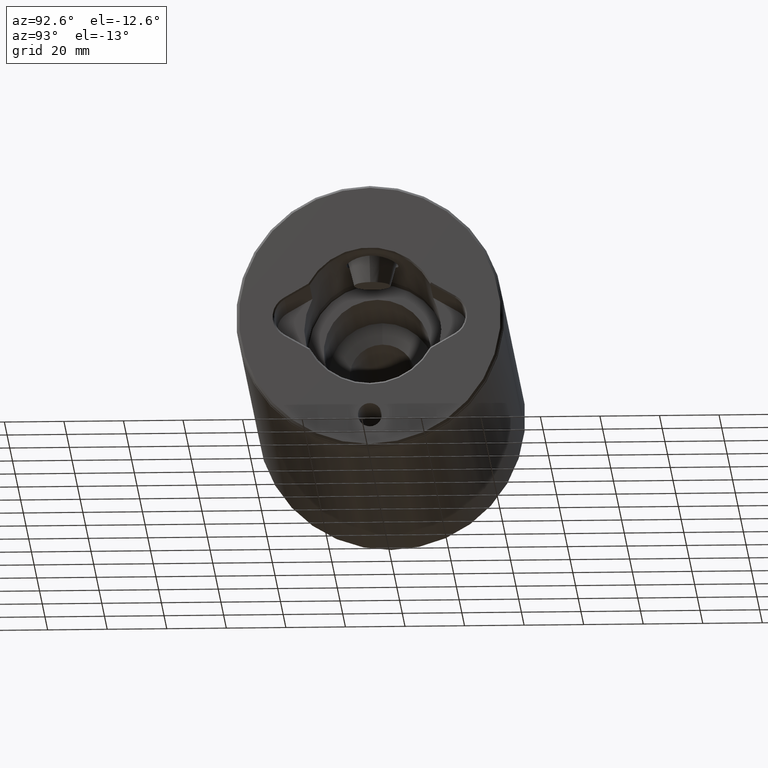
[diagram: clean part render]
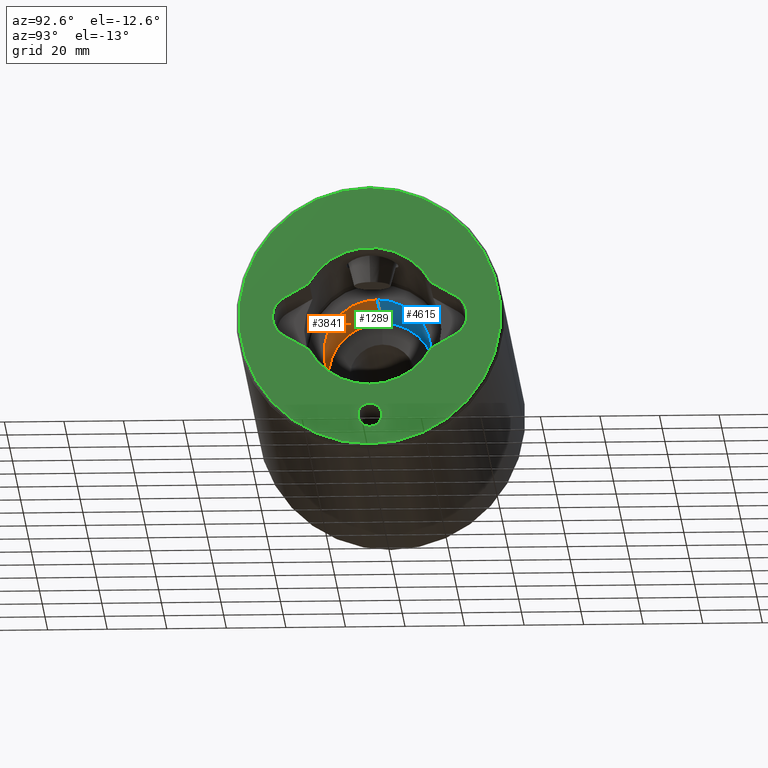
[diagram: same view with three faces highlighted in distinct colors, each labeled with its STEP entity id]
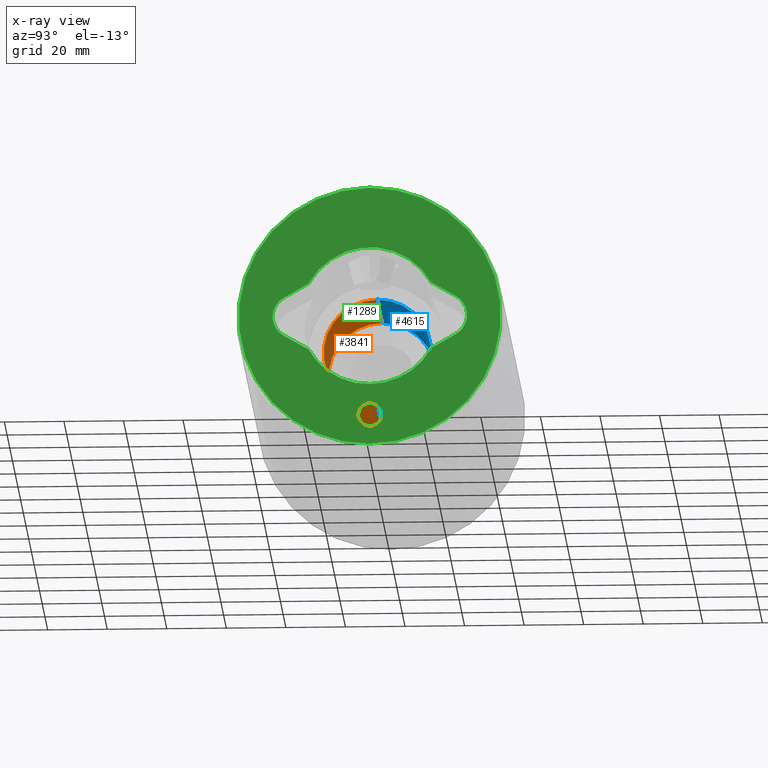
[diagram: x-ray of the same camera — body ghosted, the three highlighted faces saturated]
A machine part, auxiliary view with three faces highlighted in distinct colors.
The next image is the same camera in x-ray (body ghosted, the three faces saturated) — at least one of them is partly hidden behind the body in this view.
Their STEP definitions:

[orange] entity #3841 — the highlighted cylindrical surface (partial cylindrical patch) has radius 18 mm, axis along (1, 0, -0).
#49 = DIRECTION ( 'NONE',  ( 0.0000000000000000000, 0.0000000000000000000, -1.000000000000000000 ) ) ;
#54 = VECTOR ( 'NONE', #49, 1000.000000000000000 ) ;
#121 = DIRECTION ( 'NONE',  ( -1.000000000000000000, 0.0000000000000000000, 0.0000000000000000000 ) ) ;
#259 = CARTESIAN_POINT ( 'NONE',  ( -17.99999999999998600, 0.0000000000000000000, 56.00000000000000000 ) ) ;
#609 = EDGE_CURVE ( 'NONE', #686, #4633, #3316, .T. ) ;
#683 = DIRECTION ( 'NONE',  ( 0.0000000000000000000, 0.0000000000000000000, -1.000000000000000000 ) ) ;
#686 = VERTEX_POINT ( 'NONE', #4614 ) ;
#697 = CARTESIAN_POINT ( 'NONE',  ( 17.99999999999998600, 2.204364238465233900E-015, 0.0000000000000000000 ) ) ;
#764 = DIRECTION ( 'NONE',  ( 0.0000000000000000000, 0.0000000000000000000, -1.000000000000000000 ) ) ;
#900 = DIRECTION ( 'NONE',  ( 0.0000000000000000000, 0.0000000000000000000, -1.000000000000000000 ) ) ;
#1214 = DIRECTION ( 'NONE',  ( -1.000000000000000000, 0.0000000000000000000, 0.0000000000000000000 ) ) ;
#1248 = VERTEX_POINT ( 'NONE', #3721 ) ;
#1282 = DIRECTION ( 'NONE',  ( 0.0000000000000000000, 0.0000000000000000000, -1.000000000000000000 ) ) ;
#1365 = AXIS2_PLACEMENT_3D ( 'NONE', #3612, #900, #121 ) ;
#1637 = CYLINDRICAL_SURFACE ( 'NONE', #4439, 17.99999999999998600 ) ;
#1665 = EDGE_CURVE ( 'NONE', #3084, #4633, #3786, .T. ) ;
#2023 = CIRCLE ( 'NONE', #1365, 17.99999999999998200 ) ;
#2026 = EDGE_CURVE ( 'NONE', #1248, #3084, #2023, .T. ) ;
#2587 = ORIENTED_EDGE ( 'NONE', *, *, #3335, .T. ) ;
#2690 = VECTOR ( 'NONE', #764, 1000.000000000000000 ) ;
#3026 = CARTESIAN_POINT ( 'NONE',  ( 0.0000000000000000000, 0.0000000000000000000, 56.00000000000000000 ) ) ;
#3084 = VERTEX_POINT ( 'NONE', #4057 ) ;
#3316 = CIRCLE ( 'NONE', #3481, 17.99999999999998600 ) ;
#3335 = EDGE_CURVE ( 'NONE', #1248, #686, #3960, .T. ) ;
#3481 = AXIS2_PLACEMENT_3D ( 'NONE', #3026, #683, #3818 ) ;
#3581 = FACE_OUTER_BOUND ( 'NONE', #4664, .T. ) ;
#3612 = CARTESIAN_POINT ( 'NONE',  ( 0.0000000000000000000, 0.0000000000000000000, 92.00000000000000000 ) ) ;
#3721 = CARTESIAN_POINT ( 'NONE',  ( 17.99999999999998200, 2.204364238465233500E-015, 92.00000000000000000 ) ) ;
#3786 = LINE ( 'NONE', #5085, #54 ) ;
#3818 = DIRECTION ( 'NONE',  ( -1.000000000000000000, 0.0000000000000000000, 0.0000000000000000000 ) ) ;
#3841 = ADVANCED_FACE ( 'NONE', ( #3581 ), #1637, .F. ) ;
#3960 = LINE ( 'NONE', #697, #2690 ) ;
#4047 = ORIENTED_EDGE ( 'NONE', *, *, #2026, .F. ) ;
#4057 = CARTESIAN_POINT ( 'NONE',  ( -17.99999999999998200, 0.0000000000000000000, 92.00000000000000000 ) ) ;
#4439 = AXIS2_PLACEMENT_3D ( 'NONE', #4459, #1282, #1214 ) ;
#4459 = CARTESIAN_POINT ( 'NONE',  ( 0.0000000000000000000, 0.0000000000000000000, 0.0000000000000000000 ) ) ;
#4614 = CARTESIAN_POINT ( 'NONE',  ( 17.99999999999998600, 2.204364238465233900E-015, 56.00000000000000000 ) ) ;
#4633 = VERTEX_POINT ( 'NONE', #259 ) ;
#4664 = EDGE_LOOP ( 'NONE', ( #4047, #2587, #4979, #4799 ) ) ;
#4799 = ORIENTED_EDGE ( 'NONE', *, *, #1665, .F. ) ;
#4979 = ORIENTED_EDGE ( 'NONE', *, *, #609, .T. ) ;
#5085 = CARTESIAN_POINT ( 'NONE',  ( -17.99999999999998600, 0.0000000000000000000, 0.0000000000000000000 ) ) ;

[blue] entity #4615 — the highlighted cylindrical surface (partial cylindrical patch) has radius 18 mm, axis along (1, 0, -0).
#49 = DIRECTION ( 'NONE',  ( 0.0000000000000000000, 0.0000000000000000000, -1.000000000000000000 ) ) ;
#54 = VECTOR ( 'NONE', #49, 1000.000000000000000 ) ;
#259 = CARTESIAN_POINT ( 'NONE',  ( -17.99999999999998600, 0.0000000000000000000, 56.00000000000000000 ) ) ;
#310 = ORIENTED_EDGE ( 'NONE', *, *, #3335, .F. ) ;
#466 = AXIS2_PLACEMENT_3D ( 'NONE', #4998, #2647, #4201 ) ;
#508 = EDGE_LOOP ( 'NONE', ( #310, #1284, #3914, #4227 ) ) ;
#660 = DIRECTION ( 'NONE',  ( -1.000000000000000000, 0.0000000000000000000, 0.0000000000000000000 ) ) ;
#668 = CIRCLE ( 'NONE', #466, 17.99999999999998200 ) ;
#686 = VERTEX_POINT ( 'NONE', #4614 ) ;
#697 = CARTESIAN_POINT ( 'NONE',  ( 17.99999999999998600, 2.204364238465233900E-015, 0.0000000000000000000 ) ) ;
#764 = DIRECTION ( 'NONE',  ( 0.0000000000000000000, 0.0000000000000000000, -1.000000000000000000 ) ) ;
#1248 = VERTEX_POINT ( 'NONE', #3721 ) ;
#1284 = ORIENTED_EDGE ( 'NONE', *, *, #2281, .F. ) ;
#1485 = DIRECTION ( 'NONE',  ( 0.0000000000000000000, 0.0000000000000000000, -1.000000000000000000 ) ) ;
#1665 = EDGE_CURVE ( 'NONE', #3084, #4633, #3786, .T. ) ;
#1812 = CYLINDRICAL_SURFACE ( 'NONE', #3782, 17.99999999999998600 ) ;
#1891 = CARTESIAN_POINT ( 'NONE',  ( 0.0000000000000000000, 0.0000000000000000000, 56.00000000000000000 ) ) ;
#2281 = EDGE_CURVE ( 'NONE', #3084, #1248, #668, .T. ) ;
#2647 = DIRECTION ( 'NONE',  ( 0.0000000000000000000, 0.0000000000000000000, -1.000000000000000000 ) ) ;
#2690 = VECTOR ( 'NONE', #764, 1000.000000000000000 ) ;
#2721 = AXIS2_PLACEMENT_3D ( 'NONE', #1891, #1485, #3800 ) ;
#2863 = FACE_OUTER_BOUND ( 'NONE', #508, .T. ) ;
#3084 = VERTEX_POINT ( 'NONE', #4057 ) ;
#3264 = EDGE_CURVE ( 'NONE', #4633, #686, #4832, .T. ) ;
#3271 = CARTESIAN_POINT ( 'NONE',  ( 0.0000000000000000000, 0.0000000000000000000, 0.0000000000000000000 ) ) ;
#3335 = EDGE_CURVE ( 'NONE', #1248, #686, #3960, .T. ) ;
#3700 = DIRECTION ( 'NONE',  ( 0.0000000000000000000, 0.0000000000000000000, -1.000000000000000000 ) ) ;
#3721 = CARTESIAN_POINT ( 'NONE',  ( 17.99999999999998200, 2.204364238465233500E-015, 92.00000000000000000 ) ) ;
#3782 = AXIS2_PLACEMENT_3D ( 'NONE', #3271, #3700, #660 ) ;
#3786 = LINE ( 'NONE', #5085, #54 ) ;
#3800 = DIRECTION ( 'NONE',  ( -1.000000000000000000, 0.0000000000000000000, 0.0000000000000000000 ) ) ;
#3914 = ORIENTED_EDGE ( 'NONE', *, *, #1665, .T. ) ;
#3960 = LINE ( 'NONE', #697, #2690 ) ;
#4057 = CARTESIAN_POINT ( 'NONE',  ( -17.99999999999998200, 0.0000000000000000000, 92.00000000000000000 ) ) ;
#4201 = DIRECTION ( 'NONE',  ( -1.000000000000000000, 0.0000000000000000000, 0.0000000000000000000 ) ) ;
#4227 = ORIENTED_EDGE ( 'NONE', *, *, #3264, .T. ) ;
#4614 = CARTESIAN_POINT ( 'NONE',  ( 17.99999999999998600, 2.204364238465233900E-015, 56.00000000000000000 ) ) ;
#4615 = ADVANCED_FACE ( 'NONE', ( #2863 ), #1812, .F. ) ;
#4633 = VERTEX_POINT ( 'NONE', #259 ) ;
#4832 = CIRCLE ( 'NONE', #2721, 17.99999999999998600 ) ;
#4998 = CARTESIAN_POINT ( 'NONE',  ( 0.0000000000000000000, 0.0000000000000000000, 92.00000000000000000 ) ) ;
#5085 = CARTESIAN_POINT ( 'NONE',  ( -17.99999999999998600, 0.0000000000000000000, 0.0000000000000000000 ) ) ;

[green] entity #1289 — the highlighted planar face has unit normal (-1, 0, 0).
#60 = EDGE_CURVE ( 'NONE', #3024, #3187, #3212, .T. ) ;
#65 = VERTEX_POINT ( 'NONE', #4947 ) ;
#93 = CARTESIAN_POINT ( 'NONE',  ( 0.0000000000000000000, 0.0000000000000000000, 0.0000000000000000000 ) ) ;
#117 = CIRCLE ( 'NONE', #2913, 23.50000000000000400 ) ;
#123 = CIRCLE ( 'NONE', #327, 7.500000000000005300 ) ;
#140 = DIRECTION ( 'NONE',  ( 1.000000000000000000, 0.0000000000000000000, 0.0000000000000000000 ) ) ;
#168 = CARTESIAN_POINT ( 'NONE',  ( -6.495190528383285600, 28.90000000000000900, 0.0000000000000000000 ) ) ;
#202 = DIRECTION ( 'NONE',  ( -0.5000000000000006700, 0.8660254037844382600, 0.0000000000000000000 ) ) ;
#223 = CARTESIAN_POINT ( 'NONE',  ( 0.0000000000000000000, 0.0000000000000000000, 0.0000000000000000000 ) ) ;
#255 = DIRECTION ( 'NONE',  ( -1.000000000000000000, 0.0000000000000000000, 0.0000000000000000000 ) ) ;
#273 = DIRECTION ( 'NONE',  ( 0.5000000000000011100, 0.8660254037844379300, 0.0000000000000000000 ) ) ;
#327 = AXIS2_PLACEMENT_3D ( 'NONE', #1711, #973, #3288 ) ;
#344 = CARTESIAN_POINT ( 'NONE',  ( -6.495190528383281100, -28.90000000000000900, 0.0000000000000000000 ) ) ;
#375 = ORIENTED_EDGE ( 'NONE', *, *, #1983, .F. ) ;
#439 = EDGE_CURVE ( 'NONE', #4985, #3681, #809, .T. ) ;
#573 = AXIS2_PLACEMENT_3D ( 'NONE', #4311, #3539, #3184 ) ;
#587 = DIRECTION ( 'NONE',  ( 0.0000000000000000000, 0.0000000000000000000, 1.000000000000000000 ) ) ;
#594 = CARTESIAN_POINT ( 'NONE',  ( -38.00000000000000000, 0.0000000000000000000, 2.143131898507955800E-016 ) ) ;
#603 = VERTEX_POINT ( 'NONE', #4885 ) ;
#616 = VECTOR ( 'NONE', #273, 1000.000000000000100 ) ;
#627 = DIRECTION ( 'NONE',  ( 1.000000000000000000, 0.0000000000000000000, 0.0000000000000000000 ) ) ;
#681 = ORIENTED_EDGE ( 'NONE', *, *, #3403, .T. ) ;
#809 = LINE ( 'NONE', #1427, #4349 ) ;
#905 = EDGE_CURVE ( 'NONE', #1617, #4985, #123, .T. ) ;
#951 = CARTESIAN_POINT ( 'NONE',  ( -43.99999999999999300, 5.437431788214247800E-015, 0.0000000000000000000 ) ) ;
#973 = DIRECTION ( 'NONE',  ( 0.0000000000000000000, 0.0000000000000000000, 1.000000000000000000 ) ) ;
#1111 = CARTESIAN_POINT ( 'NONE',  ( -17.38545998097262000, -10.03750000000003200, 0.0000000000000000000 ) ) ;
#1156 = CIRCLE ( 'NONE', #4913, 23.50000000000000400 ) ;
#1173 = FACE_BOUND ( 'NONE', #3832, .T. ) ;
#1200 = CARTESIAN_POINT ( 'NONE',  ( -34.00000000000000000, 0.0000000000000000000, 2.143131898507955800E-016 ) ) ;
#1241 = AXIS2_PLACEMENT_3D ( 'NONE', #4479, #4834, #2535 ) ;
#1285 = CARTESIAN_POINT ( 'NONE',  ( 0.0000000000000000000, 0.0000000000000000000, 0.0000000000000000000 ) ) ;
#1289 = ADVANCED_FACE ( 'NONE', ( #4911, #4787, #1173 ), #2918, .F. ) ;
#1330 = CARTESIAN_POINT ( 'NONE',  ( 17.38545998097262300, 10.03750000000002600, 0.0000000000000000000 ) ) ;
#1401 = CIRCLE ( 'NONE', #5082, 23.50000000000000400 ) ;
#1427 = CARTESIAN_POINT ( 'NONE',  ( -17.38545998097261600, 10.03750000000003000, 0.0000000000000000000 ) ) ;
#1437 = EDGE_CURVE ( 'NONE', #3266, #1714, #4344, .T. ) ;
#1501 = EDGE_CURVE ( 'NONE', #3681, #3766, #117, .T. ) ;
#1561 = ORIENTED_EDGE ( 'NONE', *, *, #905, .T. ) ;
#1574 = CARTESIAN_POINT ( 'NONE',  ( -23.50000000000000400, 0.0000000000000000000, 0.0000000000000000000 ) ) ;
#1584 = DIRECTION ( 'NONE',  ( -1.000000000000000000, 0.0000000000000000000, 0.0000000000000000000 ) ) ;
#1617 = VERTEX_POINT ( 'NONE', #1885 ) ;
#1644 = DIRECTION ( 'NONE',  ( 0.0000000000000000000, 0.0000000000000000000, 1.000000000000000000 ) ) ;
#1646 = EDGE_CURVE ( 'NONE', #65, #1831, #4652, .T. ) ;
#1650 = CARTESIAN_POINT ( 'NONE',  ( 11.27717922858409800, -20.61735261003195800, 0.0000000000000000000 ) ) ;
#1711 = CARTESIAN_POINT ( 'NONE',  ( 1.285879139104753500E-016, 25.14999999999999900, 0.0000000000000000000 ) ) ;
#1714 = VERTEX_POINT ( 'NONE', #1650 ) ;
#1759 = DIRECTION ( 'NONE',  ( 1.000000000000000000, 0.0000000000000000000, 0.0000000000000000000 ) ) ;
#1768 = CIRCLE ( 'NONE', #1241, 7.499999999999998200 ) ;
#1775 = AXIS2_PLACEMENT_3D ( 'NONE', #4553, #4585, #255 ) ;
#1817 = DIRECTION ( 'NONE',  ( -0.0000000000000000000, -0.0000000000000000000, -1.000000000000000000 ) ) ;
#1831 = VERTEX_POINT ( 'NONE', #951 ) ;
#1885 = CARTESIAN_POINT ( 'NONE',  ( 6.495190528383287400, 28.90000000000001300, 0.0000000000000000000 ) ) ;
#1983 = EDGE_CURVE ( 'NONE', #3187, #3024, #5024, .T. ) ;
#2051 = DIRECTION ( 'NONE',  ( 1.000000000000000000, 0.0000000000000000000, 0.0000000000000000000 ) ) ;
#2082 = LINE ( 'NONE', #1330, #3054 ) ;
#2132 = CIRCLE ( 'NONE', #2160, 43.99999999999999300 ) ;
#2160 = AXIS2_PLACEMENT_3D ( 'NONE', #2620, #1817, #1759 ) ;
#2191 = CARTESIAN_POINT ( 'NONE',  ( 0.0000000000000000000, 0.0000000000000000000, 0.0000000000000000000 ) ) ;
#2221 = CARTESIAN_POINT ( 'NONE',  ( 17.38545998097261600, -10.03750000000003300, 0.0000000000000000000 ) ) ;
#2223 = ORIENTED_EDGE ( 'NONE', *, *, #1501, .T. ) ;
#2316 = DIRECTION ( 'NONE',  ( 0.5000000000000008900, -0.8660254037844381500, 0.0000000000000000000 ) ) ;
#2472 = DIRECTION ( 'NONE',  ( 1.000000000000000000, 0.0000000000000000000, 0.0000000000000000000 ) ) ;
#2535 = DIRECTION ( 'NONE',  ( 1.000000000000000000, 0.0000000000000000000, 0.0000000000000000000 ) ) ;
#2620 = CARTESIAN_POINT ( 'NONE',  ( 0.0000000000000000000, 0.0000000000000000000, 0.0000000000000000000 ) ) ;
#2636 = EDGE_CURVE ( 'NONE', #3742, #3266, #1768, .T. ) ;
#2766 = ORIENTED_EDGE ( 'NONE', *, *, #60, .F. ) ;
#2818 = VECTOR ( 'NONE', #2316, 1000.000000000000000 ) ;
#2829 = CARTESIAN_POINT ( 'NONE',  ( -11.27717922858411200, -20.61735261003194700, 0.0000000000000000000 ) ) ;
#2913 = AXIS2_PLACEMENT_3D ( 'NONE', #223, #4144, #627 ) ;
#2918 = PLANE ( 'NONE',  #3643 ) ;
#2986 = ORIENTED_EDGE ( 'NONE', *, *, #1437, .T. ) ;
#3015 = EDGE_CURVE ( 'NONE', #1714, #603, #1156, .T. ) ;
#3024 = VERTEX_POINT ( 'NONE', #3982 ) ;
#3054 = VECTOR ( 'NONE', #202, 1000.000000000000100 ) ;
#3184 = DIRECTION ( 'NONE',  ( 1.000000000000000000, 0.0000000000000000000, 0.0000000000000000000 ) ) ;
#3187 = VERTEX_POINT ( 'NONE', #594 ) ;
#3212 = CIRCLE ( 'NONE', #1775, 3.999999999999996400 ) ;
#3234 = ORIENTED_EDGE ( 'NONE', *, *, #4054, .T. ) ;
#3243 = EDGE_CURVE ( 'NONE', #3687, #3742, #4771, .T. ) ;
#3266 = VERTEX_POINT ( 'NONE', #5034 ) ;
#3288 = DIRECTION ( 'NONE',  ( 1.000000000000000000, 0.0000000000000000000, 0.0000000000000000000 ) ) ;
#3303 = ORIENTED_EDGE ( 'NONE', *, *, #1646, .T. ) ;
#3340 = DIRECTION ( 'NONE',  ( -0.5000000000000008900, -0.8660254037844381500, 0.0000000000000000000 ) ) ;
#3403 = EDGE_CURVE ( 'NONE', #3766, #3687, #1401, .T. ) ;
#3447 = ORIENTED_EDGE ( 'NONE', *, *, #3496, .T. ) ;
#3496 = EDGE_CURVE ( 'NONE', #603, #1617, #2082, .T. ) ;
#3539 = DIRECTION ( 'NONE',  ( -0.0000000000000000000, -0.0000000000000000000, -1.000000000000000000 ) ) ;
#3543 = CARTESIAN_POINT ( 'NONE',  ( -11.27717922858410800, 20.61735261003195100, 0.0000000000000000000 ) ) ;
#3575 = ORIENTED_EDGE ( 'NONE', *, *, #3243, .T. ) ;
#3617 = AXIS2_PLACEMENT_3D ( 'NONE', #1200, #3920, #1584 ) ;
#3618 = ORIENTED_EDGE ( 'NONE', *, *, #2636, .T. ) ;
#3623 = EDGE_LOOP ( 'NONE', ( #3303, #3234 ) ) ;
#3643 = AXIS2_PLACEMENT_3D ( 'NONE', #2191, #587, #140 ) ;
#3681 = VERTEX_POINT ( 'NONE', #3543 ) ;
#3687 = VERTEX_POINT ( 'NONE', #2829 ) ;
#3742 = VERTEX_POINT ( 'NONE', #344 ) ;
#3766 = VERTEX_POINT ( 'NONE', #1574 ) ;
#3832 = EDGE_LOOP ( 'NONE', ( #2986, #4363, #3447, #1561, #3856, #2223, #681, #3575, #3618 ) ) ;
#3856 = ORIENTED_EDGE ( 'NONE', *, *, #439, .T. ) ;
#3920 = DIRECTION ( 'NONE',  ( 0.0000000000000000000, 0.0000000000000000000, -1.000000000000000000 ) ) ;
#3982 = CARTESIAN_POINT ( 'NONE',  ( -30.00000000000000700, 4.898587196589406900E-016, 2.143131898507955800E-016 ) ) ;
#4054 = EDGE_CURVE ( 'NONE', #1831, #65, #2132, .T. ) ;
#4144 = DIRECTION ( 'NONE',  ( 0.0000000000000000000, 0.0000000000000000000, 1.000000000000000000 ) ) ;
#4311 = CARTESIAN_POINT ( 'NONE',  ( 0.0000000000000000000, 0.0000000000000000000, 0.0000000000000000000 ) ) ;
#4344 = LINE ( 'NONE', #2221, #616 ) ;
#4349 = VECTOR ( 'NONE', #3340, 1000.000000000000000 ) ;
#4363 = ORIENTED_EDGE ( 'NONE', *, *, #3015, .T. ) ;
#4418 = DIRECTION ( 'NONE',  ( 0.0000000000000000000, 0.0000000000000000000, 1.000000000000000000 ) ) ;
#4479 = CARTESIAN_POINT ( 'NONE',  ( 1.285879139104753500E-016, -25.14999999999999900, 0.0000000000000000000 ) ) ;
#4553 = CARTESIAN_POINT ( 'NONE',  ( -34.00000000000000000, 0.0000000000000000000, 2.143131898507955800E-016 ) ) ;
#4585 = DIRECTION ( 'NONE',  ( 0.0000000000000000000, 0.0000000000000000000, -1.000000000000000000 ) ) ;
#4652 = CIRCLE ( 'NONE', #573, 43.99999999999999300 ) ;
#4771 = LINE ( 'NONE', #1111, #2818 ) ;
#4787 = FACE_OUTER_BOUND ( 'NONE', #3623, .T. ) ;
#4834 = DIRECTION ( 'NONE',  ( 0.0000000000000000000, 0.0000000000000000000, 1.000000000000000000 ) ) ;
#4885 = CARTESIAN_POINT ( 'NONE',  ( 11.27717922858411500, 20.61735261003194700, 0.0000000000000000000 ) ) ;
#4908 = EDGE_LOOP ( 'NONE', ( #375, #2766 ) ) ;
#4911 = FACE_BOUND ( 'NONE', #4908, .T. ) ;
#4913 = AXIS2_PLACEMENT_3D ( 'NONE', #93, #1644, #2051 ) ;
#4947 = CARTESIAN_POINT ( 'NONE',  ( 43.99999999999999300, 0.0000000000000000000, 0.0000000000000000000 ) ) ;
#4985 = VERTEX_POINT ( 'NONE', #168 ) ;
#5024 = CIRCLE ( 'NONE', #3617, 3.999999999999996400 ) ;
#5034 = CARTESIAN_POINT ( 'NONE',  ( 6.495190528383276700, -28.90000000000000900, 0.0000000000000000000 ) ) ;
#5082 = AXIS2_PLACEMENT_3D ( 'NONE', #1285, #4418, #2472 ) ;